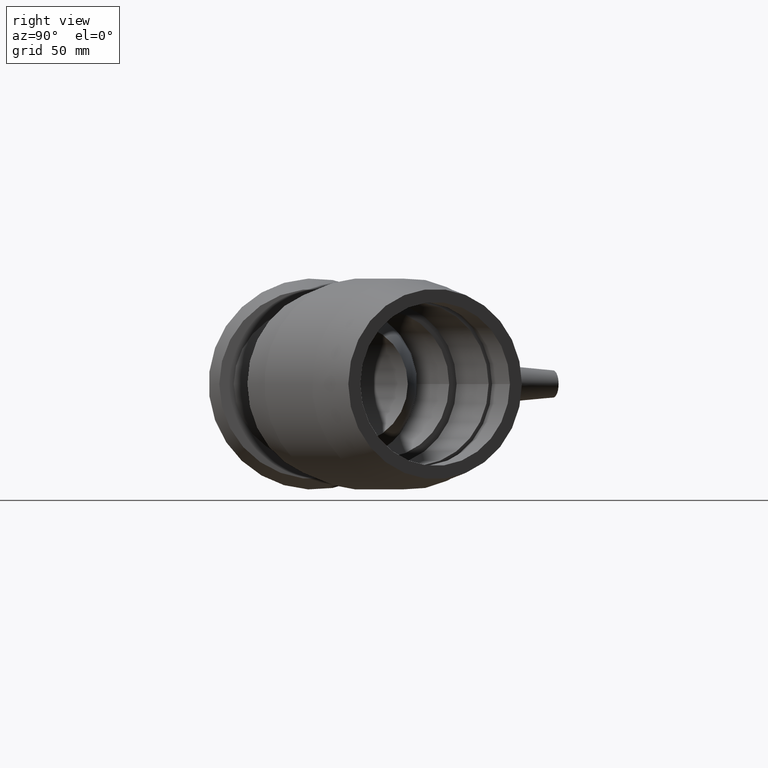
[diagram: clean part render]
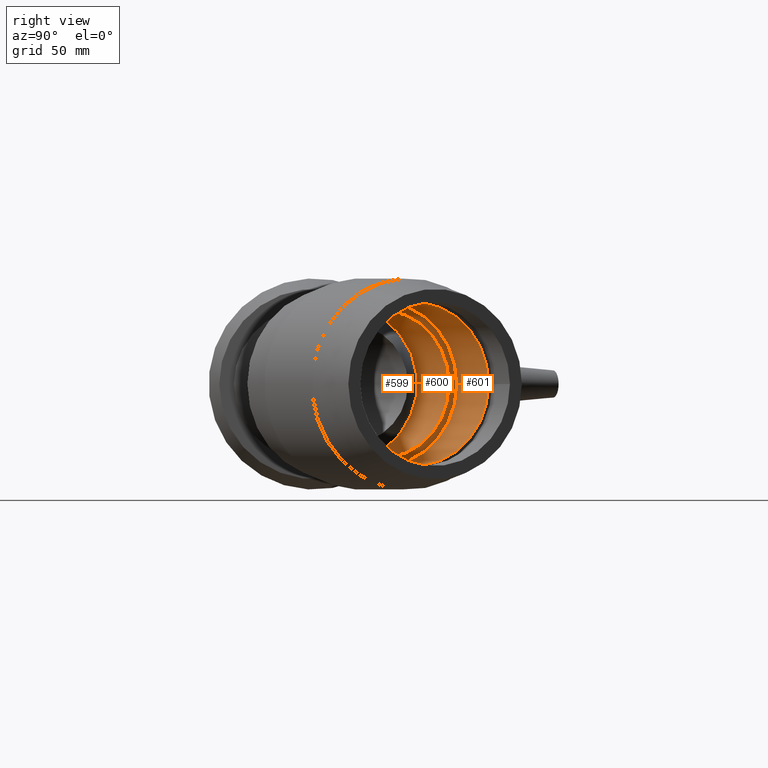
[diagram: same view with one multi-face feature highlighted, each face labeled with its STEP entity id]
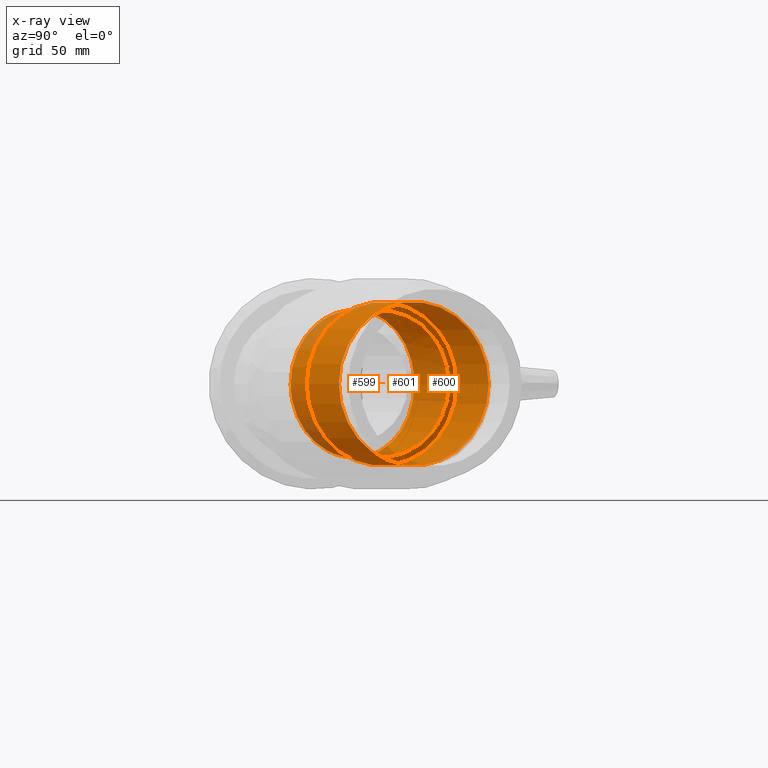
[diagram: x-ray of the same camera — body ghosted, the whole feature saturated]
A machine part, right view. The highlighted faces form ONE feature: a stepped (counterbored) hole: 2 coaxial cylindrical walls of radii 40.5 -> 45 mm joined by 1 annular planar shoulder face(s). The faces share edges in the B-rep.
The next image is the same camera in x-ray: the body ghosted and the whole hole feature saturated, so the bore chain is visible through the body.
Their STEP definitions:
[1] entity #601 (Cylinder):
#63=CYLINDRICAL_SURFACE('',#700,45.);
#108=FACE_BOUND('',#261,.T.);
#163=FACE_OUTER_BOUND('',#260,.T.);
#260=EDGE_LOOP('',(#536));
#261=EDGE_LOOP('',(#537));
#323=CIRCLE('',#699,45.);
#324=CIRCLE('',#701,45.);
#375=VERTEX_POINT('',#1376);
#376=VERTEX_POINT('',#1379);
#431=EDGE_CURVE('',#375,#375,#323,.T.);
#432=EDGE_CURVE('',#376,#376,#324,.T.);
#536=ORIENTED_EDGE('',*,*,#432,.T.);
#537=ORIENTED_EDGE('',*,*,#431,.F.);
#601=ADVANCED_FACE('',(#163,#108),#63,.F.);
#699=AXIS2_PLACEMENT_3D('',#1377,#893,#894);
#700=AXIS2_PLACEMENT_3D('',#1378,#895,#896);
#701=AXIS2_PLACEMENT_3D('',#1380,#897,#898);
#893=DIRECTION('center_axis',(0.913545457642601,0.406736643075801,1.19788532833232E-16));
#894=DIRECTION('ref_axis',(1.19788532833232E-16,2.54618386665284E-17,-1.));
#895=DIRECTION('center_axis',(0.913545457642601,0.406736643075801,1.19788532833232E-16));
#896=DIRECTION('ref_axis',(-0.406736643075801,0.913545457642601,-2.54618386665283E-17));
#897=DIRECTION('center_axis',(0.913545457642601,0.406736643075801,1.19788532833232E-16));
#898=DIRECTION('ref_axis',(1.19788532833232E-16,2.54618386665284E-17,-1.));
#1376=CARTESIAN_POINT('',(160.038257192993,78.2094667502592,9.78056284308313E-15));
#1377=CARTESIAN_POINT('Origin',(178.341406131404,37.0999211563422,1.09263455830769E-14));
#1378=CARTESIAN_POINT('Origin',(198.073988016484,45.8854326467795,1.35137778922747E-14));
#1379=CARTESIAN_POINT('',(199.503420963153,95.7804897311338,1.49554274614788E-14));
#1380=CARTESIAN_POINT('Origin',(217.806569901564,54.6709441372168,1.61012102014725E-14));
[2] entity #599 (Cylinder):
#62=CYLINDRICAL_SURFACE('',#696,40.5);
#106=FACE_BOUND('',#257,.T.);
#161=FACE_OUTER_BOUND('',#256,.T.);
#256=EDGE_LOOP('',(#532));
#257=EDGE_LOOP('',(#533));
#274=B_SPLINE_CURVE_WITH_KNOTS('',3,(#954,#955,#956,#957,#958,#959,#960,
#961,#962,#963,#964,#965,#966,#967,#968,#969,#970,#971,#972,#973,#974,#975,
#976,#977,#978,#979,#980,#981,#982,#983,#984,#985,#986,#987,#988,#989,#990,
#991,#992,#993,#994,#995,#996,#997,#998,#999,#1000,#1001,#1002,#1003,#1004,
#1005,#1006,#1007,#1008,#1009,#1010,#1011,#1012,#1013,#1014,#1015,#1016,
#1017,#1018,#1019),.UNSPECIFIED.,.T.,.F.,(4,2,2,2,2,2,2,2,2,2,2,2,2,2,2,
2,2,2,2,2,2,2,2,2,2,2,2,2,2,2,2,2,4),(0.,0.765438783035067,1.53087756607013,
2.2963163491052,3.06175513214027,3.84078287543307,4.61981061872586,5.39883836201866,
6.17786610531146,6.94860934177293,7.71935257823439,8.49009581469586,9.26083905115732,
10.0230715918188,10.7853041324802,11.5475366731416,12.309769213803,13.0720017544645,
13.8342342951259,14.5964668357873,15.3586993764488,16.1294426129102,16.9001858493717,
17.6709290858332,18.4416723222946,19.2207000655874,19.9997278088802,20.778755552173,
21.5577832954658,22.3232220785009,23.0886608615359,23.854099644571,24.6195384276061),
 .UNSPECIFIED.);
#322=CIRCLE('',#697,40.5);
#332=VERTEX_POINT('',#952);
#374=VERTEX_POINT('',#1373);
#385=EDGE_CURVE('',#332,#332,#274,.T.);
#430=EDGE_CURVE('',#374,#374,#322,.T.);
#532=ORIENTED_EDGE('',*,*,#385,.T.);
#533=ORIENTED_EDGE('',*,*,#430,.T.);
#599=ADVANCED_FACE('',(#161,#106),#62,.F.);
#696=AXIS2_PLACEMENT_3D('',#1372,#887,#888);
#697=AXIS2_PLACEMENT_3D('',#1374,#889,#890);
#887=DIRECTION('center_axis',(0.913545457642601,0.406736643075801,1.19788532833232E-16));
#888=DIRECTION('ref_axis',(-0.406736643075801,0.913545457642601,-2.54618386665283E-17));
#889=DIRECTION('center_axis',(0.913545457642601,0.406736643075801,1.19788532833232E-16));
#890=DIRECTION('ref_axis',(1.19788532833232E-16,2.54618386665284E-17,-1.));
#952=CARTESIAN_POINT('',(165.398076439882,-12.9955897852239,0.));
#954=CARTESIAN_POINT('Ctrl Pts',(118.836807181088,54.9395360753761,3.88578058618805E-15));
#955=CARTESIAN_POINT('Ctrl Pts',(118.836807181088,54.9395360753761,-2.55146261011689));
#956=CARTESIAN_POINT('Ctrl Pts',(119.032753667643,54.758694426242,-5.18112734237261));
#957=CARTESIAN_POINT('Ctrl Pts',(119.821130671582,53.9903148985767,-10.3985091246086));
#958=CARTESIAN_POINT('Ctrl Pts',(120.411115336494,53.4020135888583,-12.9864830067047));
#959=CARTESIAN_POINT('Ctrl Pts',(121.898015580381,51.8221766394389,-17.9434877448954));
#960=CARTESIAN_POINT('Ctrl Pts',(122.7951328635,50.8288461508181,-20.3167127469352));
#961=CARTESIAN_POINT('Ctrl Pts',(124.786899065786,48.5039737601494,-24.7048770409993));
#962=CARTESIAN_POINT('Ctrl Pts',(125.881784162749,47.1722589157321,-26.7196175001774));
#963=CARTESIAN_POINT('Ctrl Pts',(128.165497786687,44.285623895999,-30.3190865692817));
#964=CARTESIAN_POINT('Ctrl Pts',(129.436882262905,42.6251958286104,-32.0230676488185));
#965=CARTESIAN_POINT('Ctrl Pts',(132.14080762607,38.9753054335681,-35.0282660259902));
#966=CARTESIAN_POINT('Ctrl Pts',(133.573381874156,36.9859903890014,-36.3296321823023));
#967=CARTESIAN_POINT('Ctrl Pts',(136.508384340151,32.8067949913562,-38.4212810400114));
#968=CARTESIAN_POINT('Ctrl Pts',(138.01322111706,30.6137640248607,-39.2131338585934));
#969=CARTESIAN_POINT('Ctrl Pts',(140.999035333075,26.1803906058281,-40.2526190209207));
#970=CARTESIAN_POINT('Ctrl Pts',(142.480158790043,23.940087562081,-40.5));
#971=CARTESIAN_POINT('Ctrl Pts',(145.302307584589,19.6131911300487,-40.5));
#972=CARTESIAN_POINT('Ctrl Pts',(146.740603967182,17.377859895086,-40.2578053468176));
#973=CARTESIAN_POINT('Ctrl Pts',(149.579327921063,12.9145967509958,-39.2336968950215));
#974=CARTESIAN_POINT('Ctrl Pts',(150.979893746095,10.6867071807475,-38.451981815353));
#975=CARTESIAN_POINT('Ctrl Pts',(153.649984546036,6.40174778698372,-36.3803320499306));
#976=CARTESIAN_POINT('Ctrl Pts',(154.921725177841,4.34133007459506,-35.0887418233472));
#977=CARTESIAN_POINT('Ctrl Pts',(157.263074820401,0.523505406616577,-32.0989640441669));
#978=CARTESIAN_POINT('Ctrl Pts',(158.332686055679,-1.23374901625598,-30.4005834606171));
#979=CARTESIAN_POINT('Ctrl Pts',(160.209546789542,-4.33076010741242,-26.7954217581718));
#980=CARTESIAN_POINT('Ctrl Pts',(161.082692741899,-5.77928418832377,-24.7696478711998));
#981=CARTESIAN_POINT('Ctrl Pts',(162.618659988401,-8.33601979989025,-20.3568624628325));
#982=CARTESIAN_POINT('Ctrl Pts',(163.281638852577,-9.44434433264792,-17.9699712627025));
#983=CARTESIAN_POINT('Ctrl Pts',(164.345201292308,-11.2257403309339,-12.9896494446636));
#984=CARTESIAN_POINT('Ctrl Pts',(164.746676167415,-11.9002268942586,-10.3922034607715));
#985=CARTESIAN_POINT('Ctrl Pts',(165.273167416911,-12.7852470631019,-5.16778788209395));
#986=CARTESIAN_POINT('Ctrl Pts',(165.398076439882,-12.9955897852239,-2.54077513553808));
#987=CARTESIAN_POINT('Ctrl Pts',(165.398076439882,-12.9955897852239,2.5407751355381));
#988=CARTESIAN_POINT('Ctrl Pts',(165.273167416911,-12.7852470631019,5.16778788209398));
#989=CARTESIAN_POINT('Ctrl Pts',(164.746676167415,-11.9002268942586,10.3922034607715));
#990=CARTESIAN_POINT('Ctrl Pts',(164.345201292308,-11.2257403309339,12.9896494446637));
#991=CARTESIAN_POINT('Ctrl Pts',(163.281638852577,-9.44434433264792,17.9699712627025));
#992=CARTESIAN_POINT('Ctrl Pts',(162.618659988401,-8.33601979989028,20.3568624628325));
#993=CARTESIAN_POINT('Ctrl Pts',(161.082692741899,-5.77928418832379,24.7696478711999));
#994=CARTESIAN_POINT('Ctrl Pts',(160.209546789542,-4.33076010741243,26.7954217581718));
#995=CARTESIAN_POINT('Ctrl Pts',(158.332686055679,-1.23374901625598,30.4005834606171));
#996=CARTESIAN_POINT('Ctrl Pts',(157.263074820401,0.523505406616572,32.0989640441669));
#997=CARTESIAN_POINT('Ctrl Pts',(154.921725177841,4.34133007459507,35.0887418233472));
#998=CARTESIAN_POINT('Ctrl Pts',(153.649984546036,6.40174778698374,36.3803320499306));
#999=CARTESIAN_POINT('Ctrl Pts',(150.979893746095,10.6867071807475,38.451981815353));
#1000=CARTESIAN_POINT('Ctrl Pts',(149.579327921063,12.9145967509958,39.2336968950215));
#1001=CARTESIAN_POINT('Ctrl Pts',(146.740603967182,17.377859895086,40.2578053468176));
#1002=CARTESIAN_POINT('Ctrl Pts',(145.302307584589,19.6131911300487,40.5));
#1003=CARTESIAN_POINT('Ctrl Pts',(142.480158790043,23.940087562081,40.5));
#1004=CARTESIAN_POINT('Ctrl Pts',(140.999035333075,26.1803906058282,40.2526190209207));
#1005=CARTESIAN_POINT('Ctrl Pts',(138.01322111706,30.6137640248607,39.2131338585934));
#1006=CARTESIAN_POINT('Ctrl Pts',(136.508384340151,32.8067949913562,38.4212810400114));
#1007=CARTESIAN_POINT('Ctrl Pts',(133.573381874156,36.9859903890013,36.3296321823023));
#1008=CARTESIAN_POINT('Ctrl Pts',(132.14080762607,38.9753054335681,35.0282660259902));
#1009=CARTESIAN_POINT('Ctrl Pts',(129.436882262905,42.6251958286104,32.0230676488185));
#1010=CARTESIAN_POINT('Ctrl Pts',(128.165497786687,44.285623895999,30.3190865692817));
#1011=CARTESIAN_POINT('Ctrl Pts',(125.881784162749,47.1722589157321,26.7196175001774));
#1012=CARTESIAN_POINT('Ctrl Pts',(124.786899065786,48.5039737601494,24.7048770409993));
#1013=CARTESIAN_POINT('Ctrl Pts',(122.7951328635,50.8288461508182,20.3167127469351));
#1014=CARTESIAN_POINT('Ctrl Pts',(121.898015580381,51.8221766394389,17.9434877448954));
#1015=CARTESIAN_POINT('Ctrl Pts',(120.411115336494,53.4020135888583,12.9864830067047));
#1016=CARTESIAN_POINT('Ctrl Pts',(119.821130671582,53.9903148985767,10.3985091246086));
#1017=CARTESIAN_POINT('Ctrl Pts',(119.032753667643,54.7586944262419,5.18112734237262));
#1018=CARTESIAN_POINT('Ctrl Pts',(118.836807181088,54.9395360753761,2.55146261011689));
#1019=CARTESIAN_POINT('Ctrl Pts',(118.836807181088,54.9395360753761,6.66133814775094E-15));
#1372=CARTESIAN_POINT('Origin',(148.925242395312,24.0030012493014,7.06915482584684E-15));
#1373=CARTESIAN_POINT('',(161.868572086834,74.0985121908675,9.89514111708251E-15));
#1374=CARTESIAN_POINT('Origin',(178.341406131404,37.0999211563422,1.09263455830769E-14));
[3] entity #600 (Plane):
#42=PLANE('',#698);
#107=FACE_BOUND('',#259,.T.);
#162=FACE_OUTER_BOUND('',#258,.T.);
#258=EDGE_LOOP('',(#534));
#259=EDGE_LOOP('',(#535));
#322=CIRCLE('',#697,40.5);
#323=CIRCLE('',#699,45.);
#374=VERTEX_POINT('',#1373);
#375=VERTEX_POINT('',#1376);
#430=EDGE_CURVE('',#374,#374,#322,.T.);
#431=EDGE_CURVE('',#375,#375,#323,.T.);
#534=ORIENTED_EDGE('',*,*,#431,.T.);
#535=ORIENTED_EDGE('',*,*,#430,.F.);
#600=ADVANCED_FACE('',(#162,#107),#42,.F.);
#697=AXIS2_PLACEMENT_3D('',#1374,#889,#890);
#698=AXIS2_PLACEMENT_3D('',#1375,#891,#892);
#699=AXIS2_PLACEMENT_3D('',#1377,#893,#894);
#889=DIRECTION('center_axis',(0.913545457642601,0.406736643075801,1.19788532833232E-16));
#890=DIRECTION('ref_axis',(1.19788532833232E-16,2.54618386665284E-17,-1.));
#891=DIRECTION('center_axis',(-0.913545457642601,-0.406736643075801,-1.19788532833232E-16));
#892=DIRECTION('ref_axis',(0.,0.,1.));
#893=DIRECTION('center_axis',(0.913545457642601,0.406736643075801,1.19788532833232E-16));
#894=DIRECTION('ref_axis',(1.19788532833232E-16,2.54618386665284E-17,-1.));
#1373=CARTESIAN_POINT('',(161.868572086834,74.0985121908675,9.89514111708251E-15));
#1374=CARTESIAN_POINT('Origin',(178.341406131404,37.0999211563422,1.09263455830769E-14));
#1375=CARTESIAN_POINT('Origin',(160.038257192993,78.2094667502592,9.78056284308313E-15));
#1376=CARTESIAN_POINT('',(160.038257192993,78.2094667502592,9.78056284308313E-15));
#1377=CARTESIAN_POINT('Origin',(178.341406131404,37.0999211563422,1.09263455830769E-14));